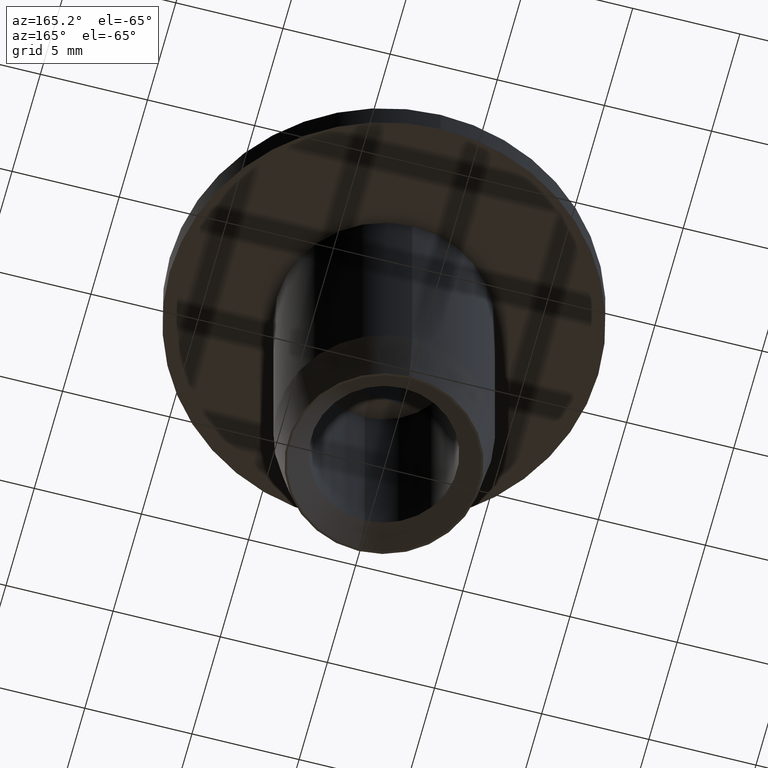
[diagram: clean part render]
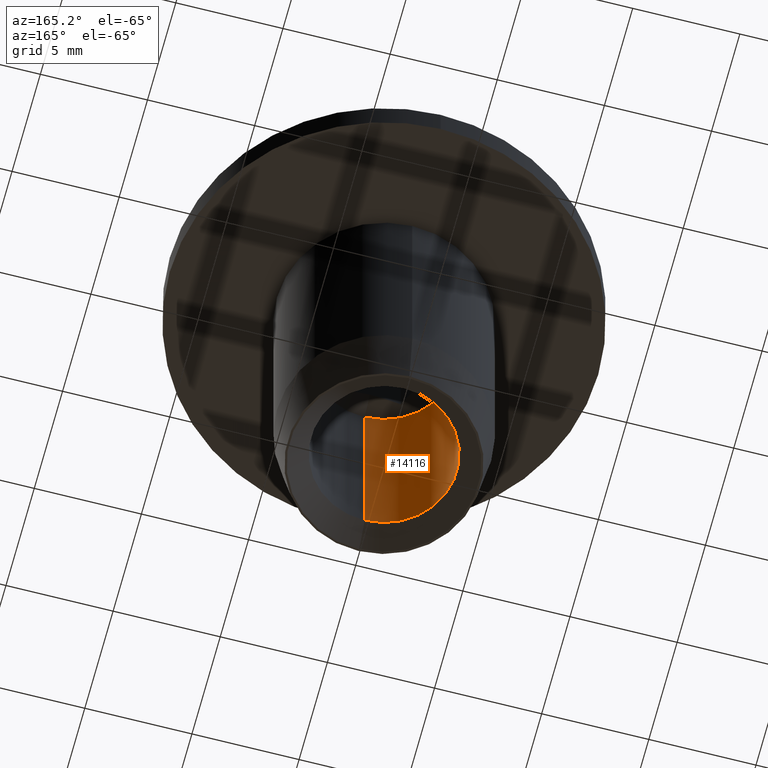
[diagram: same view with one face highlighted and labeled with its STEP entity id]
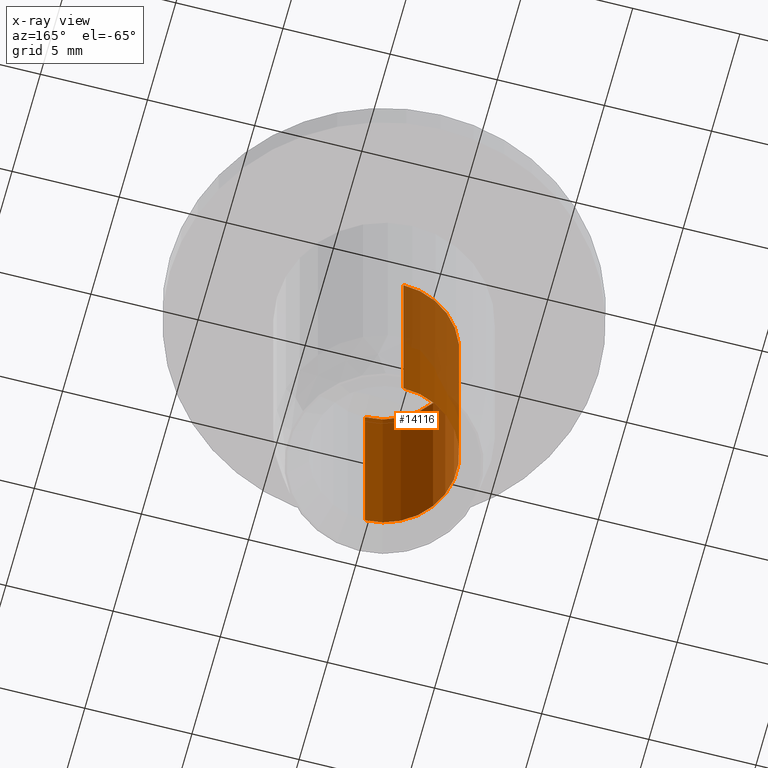
[diagram: x-ray of the same camera — body ghosted, the highlighted face saturated]
A machine part, auxiliary view. The second image highlights one B-rep face of the part: STEP entity #14116.
The next image is the same camera in x-ray: the body ghosted, the highlighted face saturated — about 26% of this face is hidden behind the body in this view.
In plain terms, the highlighted cylindrical surface (partial cylindrical patch) has radius 3.4 mm, axis along (-0, 0, -1).
Its self-contained STEP definition (entity closure, byte-faithful):
#1123 = DIRECTION ( 'NONE',  ( 0.0000000000000000000, 1.000000000000000000, 2.551063935260013400E-016 ) ) ;
#1796 = VERTEX_POINT ( 'NONE', #5840 ) ;
#2090 = DIRECTION ( 'NONE',  ( 0.0000000000000000000, 2.500348904555544500E-016, -1.000000000000000000 ) ) ;
#2885 = LINE ( 'NONE', #11708, #13630 ) ;
#3104 = CYLINDRICAL_SURFACE ( 'NONE', #7745, 3.399999999999997200 ) ;
#3430 = DIRECTION ( 'NONE',  ( 0.0000000000000000000, 1.000000000000000000, 2.551063935260012500E-016 ) ) ;
#3475 = CARTESIAN_POINT ( 'NONE',  ( 4.163799117100996100E-016, -3.399999999999996800, 3.500000000000000400 ) ) ;
#4530 = DIRECTION ( 'NONE',  ( -0.0000000000000000000, 2.500348904555544000E-016, -1.000000000000000000 ) ) ;
#4960 = EDGE_LOOP ( 'NONE', ( #9543, #11213, #12696, #6323 ) ) ;
#5131 = EDGE_CURVE ( 'NONE', #12464, #1796, #11968, .T. ) ;
#5249 = VERTEX_POINT ( 'NONE', #7056 ) ;
#5840 = CARTESIAN_POINT ( 'NONE',  ( 0.0000000000000000000, 3.399999999999995000, 3.500000000000002200 ) ) ;
#6323 = ORIENTED_EDGE ( 'NONE', *, *, #13975, .F. ) ;
#6598 = EDGE_CURVE ( 'NONE', #7305, #5249, #9740, .T. ) ;
#7056 = CARTESIAN_POINT ( 'NONE',  ( 0.0000000000000000000, 3.399999999999999000, -7.499999999999999100 ) ) ;
#7305 = VERTEX_POINT ( 'NONE', #16954 ) ;
#7745 = AXIS2_PLACEMENT_3D ( 'NONE', #15090, #4530, #15203 ) ;
#7961 = DIRECTION ( 'NONE',  ( -0.0000000000000000000, 2.500348904555544000E-016, -1.000000000000000000 ) ) ;
#9039 = DIRECTION ( 'NONE',  ( -0.0000000000000000000, 2.500348904555544000E-016, -1.000000000000000000 ) ) ;
#9543 = ORIENTED_EDGE ( 'NONE', *, *, #5131, .F. ) ;
#9704 = LINE ( 'NONE', #13604, #10955 ) ;
#9740 = CIRCLE ( 'NONE', #11581, 3.399999999999997200 ) ;
#10955 = VECTOR ( 'NONE', #11009, 1000.000000000000000 ) ;
#11009 = DIRECTION ( 'NONE',  ( -0.0000000000000000000, 2.500348904555544000E-016, -1.000000000000000000 ) ) ;
#11213 = ORIENTED_EDGE ( 'NONE', *, *, #16091, .T. ) ;
#11491 = CARTESIAN_POINT ( 'NONE',  ( 0.0000000000000000000, 1.875261678416657300E-015, -7.500000000000000000 ) ) ;
#11581 = AXIS2_PLACEMENT_3D ( 'NONE', #11491, #2090, #3430 ) ;
#11678 = AXIS2_PLACEMENT_3D ( 'NONE', #11728, #9039, #1123 ) ;
#11708 = CARTESIAN_POINT ( 'NONE',  ( 0.0000000000000000000, 3.399999999999999500, -8.499999999999998200 ) ) ;
#11728 = CARTESIAN_POINT ( 'NONE',  ( 0.0000000000000000000, -8.751221165944411500E-016, 3.500000000000001300 ) ) ;
#11968 = CIRCLE ( 'NONE', #11678, 3.399999999999995900 ) ;
#12369 = FACE_OUTER_BOUND ( 'NONE', #4960, .T. ) ;
#12464 = VERTEX_POINT ( 'NONE', #3475 ) ;
#12696 = ORIENTED_EDGE ( 'NONE', *, *, #6598, .T. ) ;
#13604 = CARTESIAN_POINT ( 'NONE',  ( 4.163799117100997600E-016, -3.399999999999995000, -8.499999999999998200 ) ) ;
#13630 = VECTOR ( 'NONE', #7961, 1000.000000000000000 ) ;
#13975 = EDGE_CURVE ( 'NONE', #1796, #5249, #2885, .T. ) ;
#14116 = ADVANCED_FACE ( 'NONE', ( #12369 ), #3104, .F. ) ;
#15090 = CARTESIAN_POINT ( 'NONE',  ( 0.0000000000000000000, 2.125296568872211600E-015, -8.499999999999998200 ) ) ;
#15203 = DIRECTION ( 'NONE',  ( 0.0000000000000000000, 1.000000000000000000, 0.0000000000000000000 ) ) ;
#16091 = EDGE_CURVE ( 'NONE', #12464, #7305, #9704, .T. ) ;
#16954 = CARTESIAN_POINT ( 'NONE',  ( 4.163799117100997600E-016, -3.399999999999995500, -7.500000000000000900 ) ) ;